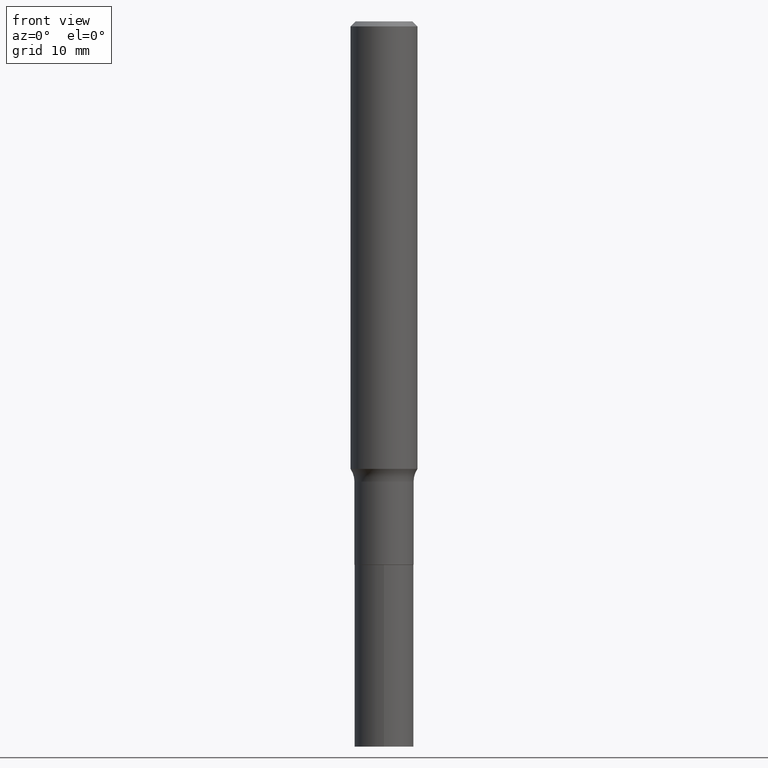
[diagram: clean part render]
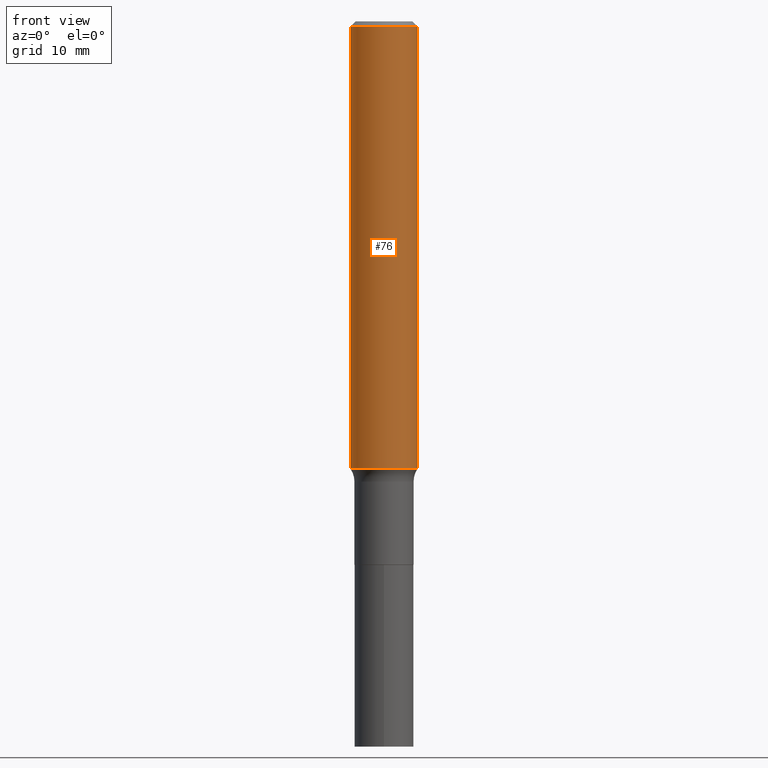
[diagram: same view with one face highlighted and labeled with its STEP entity id]
A machine part, front view. The second image highlights one B-rep face of the part: STEP entity #76.
In plain terms, the highlighted cylindrical surface (edge-blend (fillet) strip) has radius 2.9997 mm, axis along (-0, 0, 1).
Its self-contained STEP definition (entity closure, byte-faithful):
#38 = ORIENTED_EDGE ( 'NONE', *, *, #433, .T. ) ;
#47 = DIRECTION ( 'NONE',  ( -2.445468806185136877E-29, 3.491481338843145188E-15, 1.000000000000000000 ) ) ;
#49 = AXIS2_PLACEMENT_3D ( 'NONE', #410, #93, #89 ) ;
#69 = DIRECTION ( 'NONE',  ( -2.445468806185136597E-29, 3.491481338843145583E-15, 1.000000000000000000 ) ) ;
#70 = CARTESIAN_POINT ( 'NONE',  ( 0.1181000000000000799, -8.246878922347486570E-16, 5.758764772215004644E-30 ) ) ;
#76 = ADVANCED_FACE ( 'NONE', ( #386 ), #180, .T. ) ;
#89 = DIRECTION ( 'NONE',  ( 1.000000000000000000, -6.982962677686266711E-15, 0.000000000000000000 ) ) ;
#93 = DIRECTION ( 'NONE',  ( -2.445468806185136597E-29, 3.491481338843145583E-15, 1.000000000000000000 ) ) ;
#107 = CIRCLE ( 'NONE', #49, 0.1180999999999999966 ) ;
#125 = CARTESIAN_POINT ( 'NONE',  ( 0.1180999999999999966, -8.865394841523547570E-16, -0.01771500000000010913 ) ) ;
#138 = EDGE_CURVE ( 'NONE', #153, #189, #329, .T. ) ;
#141 = LINE ( 'NONE', #70, #302 ) ;
#144 = DIRECTION ( 'NONE',  ( 1.000000000000000000, -6.982962677686270655E-15, 0.000000000000000000 ) ) ;
#153 = VERTEX_POINT ( 'NONE', #422 ) ;
#180 = CYLINDRICAL_SURFACE ( 'NONE', #396, 0.1181000000000000799 ) ;
#189 = VERTEX_POINT ( 'NONE', #387 ) ;
#206 = LINE ( 'NONE', #373, #442 ) ;
#252 = CARTESIAN_POINT ( 'NONE',  ( -0.1180999999999999966, -1.948223441102449784E-15, -0.01771500000000010913 ) ) ;
#264 = ORIENTED_EDGE ( 'NONE', *, *, #327, .F. ) ;
#275 = ORIENTED_EDGE ( 'NONE', *, *, #138, .T. ) ;
#299 = VERTEX_POINT ( 'NONE', #125 ) ;
#302 = VECTOR ( 'NONE', #423, 39.37007874015748143 ) ;
#322 = CARTESIAN_POINT ( 'NONE',  ( 0.000000000000000000, 0.000000000000000000, 0.000000000000000000 ) ) ;
#326 = CARTESIAN_POINT ( 'NONE',  ( 3.861288921395363891E-29, -5.512897232152652130E-15, -1.578956522213369240 ) ) ;
#327 = EDGE_CURVE ( 'NONE', #397, #299, #107, .T. ) ;
#329 = CIRCLE ( 'NONE', #338, 0.1181000000000001632 ) ;
#338 = AXIS2_PLACEMENT_3D ( 'NONE', #326, #464, #144 ) ;
#350 = EDGE_CURVE ( 'NONE', #153, #397, #206, .T. ) ;
#373 = CARTESIAN_POINT ( 'NONE',  ( -0.1181000000000000799, 8.391509709326788873E-16, -5.809262341591047988E-30 ) ) ;
#386 = FACE_OUTER_BOUND ( 'NONE', #398, .T. ) ;
#387 = CARTESIAN_POINT ( 'NONE',  ( 0.1181000000000001909, -6.337585124387401970E-15, -1.578956522213369240 ) ) ;
#396 = AXIS2_PLACEMENT_3D ( 'NONE', #322, #69, #461 ) ;
#397 = VERTEX_POINT ( 'NONE', #252 ) ;
#398 = EDGE_LOOP ( 'NONE', ( #440, #275, #38, #264 ) ) ;
#410 = CARTESIAN_POINT ( 'NONE',  ( 4.332147990156995868E-31, -6.185159191760670395E-17, -0.01771500000000010913 ) ) ;
#422 = CARTESIAN_POINT ( 'NONE',  ( -0.1181000000000001909, -4.673746261219972355E-15, -1.578956522213369240 ) ) ;
#423 = DIRECTION ( 'NONE',  ( -2.445468806185136877E-29, 3.491481338843145188E-15, 1.000000000000000000 ) ) ;
#433 = EDGE_CURVE ( 'NONE', #189, #299, #141, .T. ) ;
#440 = ORIENTED_EDGE ( 'NONE', *, *, #350, .F. ) ;
#442 = VECTOR ( 'NONE', #47, 39.37007874015748143 ) ;
#461 = DIRECTION ( 'NONE',  ( 1.000000000000000000, -6.982962677686266711E-15, 4.876176775795936353E-29 ) ) ;
#464 = DIRECTION ( 'NONE',  ( -2.445468806185136597E-29, 3.491481338843145583E-15, 1.000000000000000000 ) ) ;